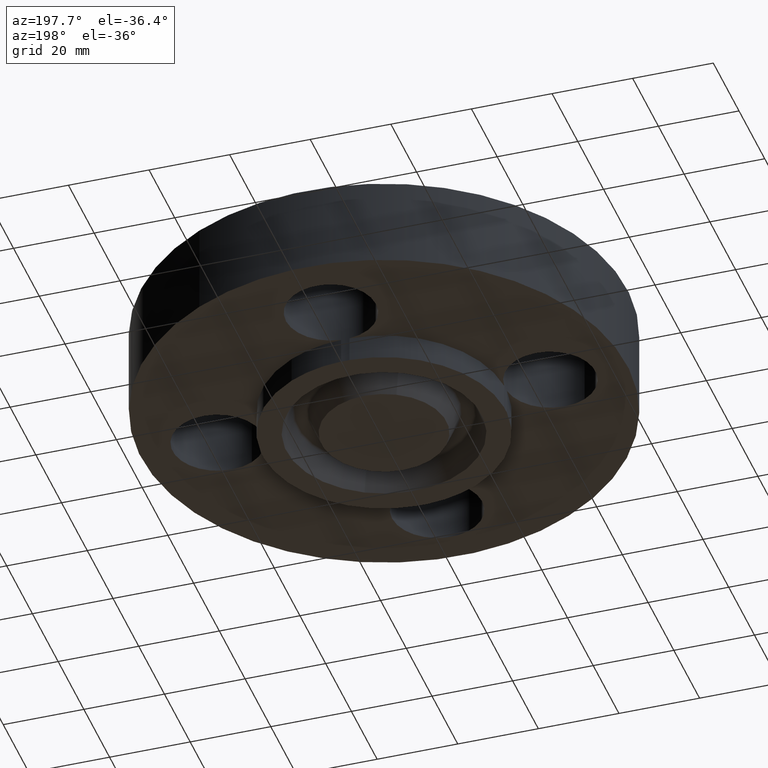
[diagram: clean part render]
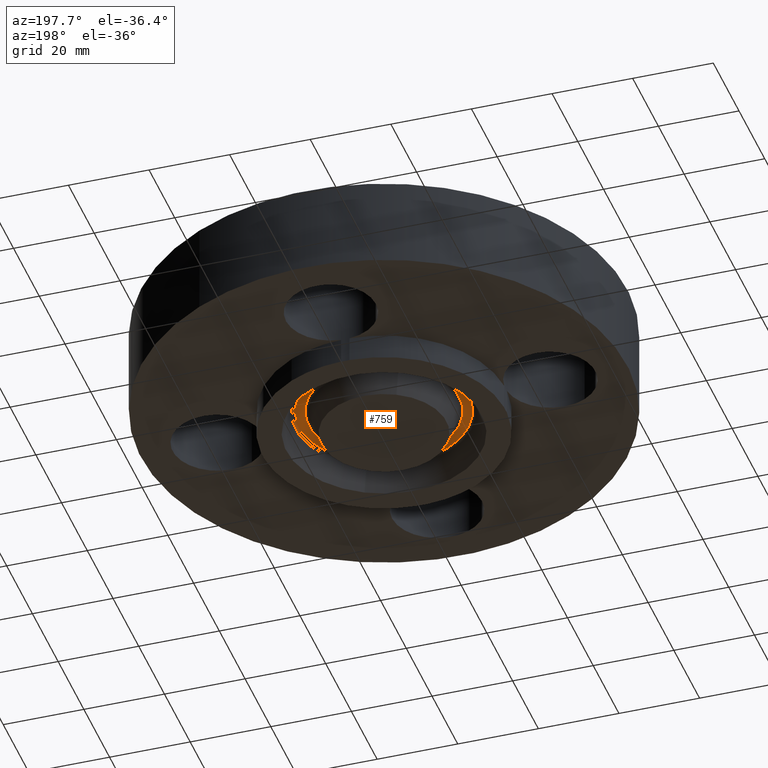
[diagram: same view with one face highlighted and labeled with its STEP entity id]
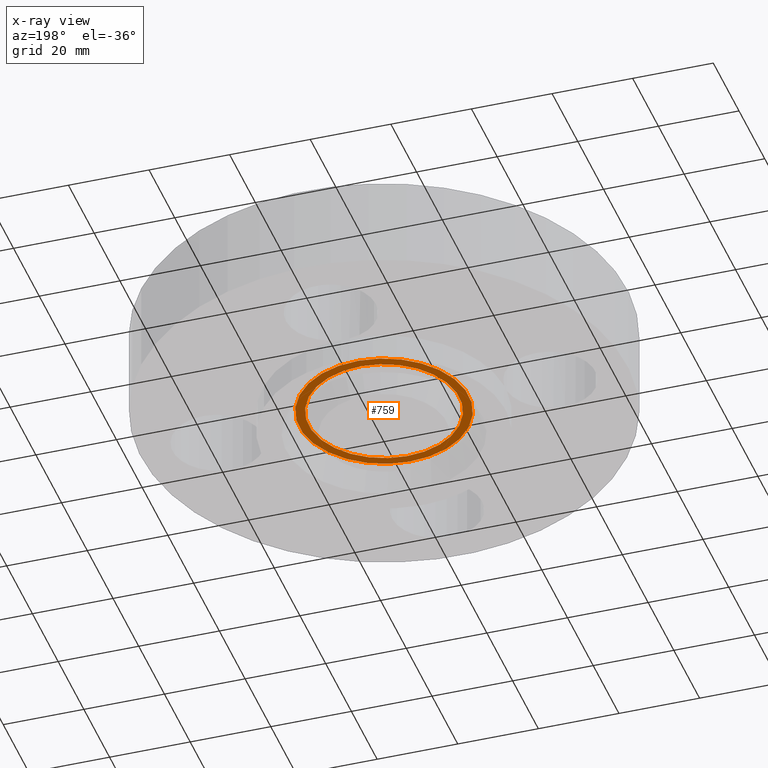
[diagram: x-ray of the same camera — body ghosted, the highlighted face saturated]
A machine part, auxiliary view. The second image highlights one B-rep face of the part: STEP entity #759.
The next image is the same camera in x-ray: the body ghosted, the highlighted face saturated — about 0% of this face is hidden behind the body in this view.
In plain terms, the highlighted planar face has unit normal (0, 0, -1).
Its self-contained STEP definition (entity closure, byte-faithful):
#403=AXIS2_PLACEMENT_3D('Plane Axis2P3D',#400,#401,#402) ;
#681=AXIS2_PLACEMENT_3D('Circle Axis2P3D',#679,#680,$) ;
#727=AXIS2_PLACEMENT_3D('Circle Axis2P3D',#725,#726,$) ;
#743=AXIS2_PLACEMENT_3D('Circle Axis2P3D',#741,#742,$) ;
#752=AXIS2_PLACEMENT_3D('Circle Axis2P3D',#750,#751,$) ;
#400=CARTESIAN_POINT('Axis2P3D Location',(0.,1.1875,0.)) ;
#676=CARTESIAN_POINT('Vertex',(-0.396419164123,0.725640412578,-4.37095678986E-017)) ;
#679=CARTESIAN_POINT('Axis2P3D Location',(0.,0.,-4.37095678986E-017)) ;
#683=CARTESIAN_POINT('Vertex',(0.396419164123,-0.725640412578,-4.37095678986E-017)) ;
#725=CARTESIAN_POINT('Axis2P3D Location',(0.,0.,-4.37095678986E-017)) ;
#741=CARTESIAN_POINT('Axis2P3D Location',(0.,0.,0.)) ;
#745=CARTESIAN_POINT('Vertex',(0.352922952719,-0.646021131662,5.68224382682E-017)) ;
#747=CARTESIAN_POINT('Vertex',(-0.352922952719,0.646021131662,5.68224382682E-017)) ;
#750=CARTESIAN_POINT('Axis2P3D Location',(0.,0.,0.)) ;
#401=DIRECTION('Axis2P3D Direction',(0.,0.,-0.0393700787402)) ;
#402=DIRECTION('Axis2P3D XDirection',(0.0393700787402,0.,0.)) ;
#680=DIRECTION('Axis2P3D Direction',(0.,0.,0.0393700787402)) ;
#726=DIRECTION('Axis2P3D Direction',(0.,0.,0.0393700787402)) ;
#742=DIRECTION('Axis2P3D Direction',(0.,0.,-0.0393700787402)) ;
#751=DIRECTION('Axis2P3D Direction',(0.,0.,-0.0393700787402)) ;
#738=ORIENTED_EDGE('',*,*,#685,.F.) ;
#739=ORIENTED_EDGE('',*,*,#729,.F.) ;
#756=ORIENTED_EDGE('',*,*,#749,.T.) ;
#757=ORIENTED_EDGE('',*,*,#754,.T.) ;
#758=FACE_BOUND('',#755,.T.) ;
#759=ADVANCED_FACE('PartBody',(#740,#758),#404,.T.) ;
#682=CIRCLE('generated circle',#681,0.826862843554) ;
#728=CIRCLE('generated circle',#727,0.826862843554) ;
#744=CIRCLE('generated circle',#743,0.736137156452) ;
#753=CIRCLE('generated circle',#752,0.736137156452) ;
#685=EDGE_CURVE('',#677,#684,#682,.T.) ;
#729=EDGE_CURVE('',#684,#677,#728,.T.) ;
#749=EDGE_CURVE('',#746,#748,#744,.F.) ;
#754=EDGE_CURVE('',#748,#746,#753,.F.) ;
#737=EDGE_LOOP('',(#738,#739)) ;
#755=EDGE_LOOP('',(#756,#757)) ;
#740=FACE_OUTER_BOUND('',#737,.T.) ;
#404=PLANE('',#403) ;
#677=VERTEX_POINT('',#676) ;
#684=VERTEX_POINT('',#683) ;
#746=VERTEX_POINT('',#745) ;
#748=VERTEX_POINT('',#747) ;